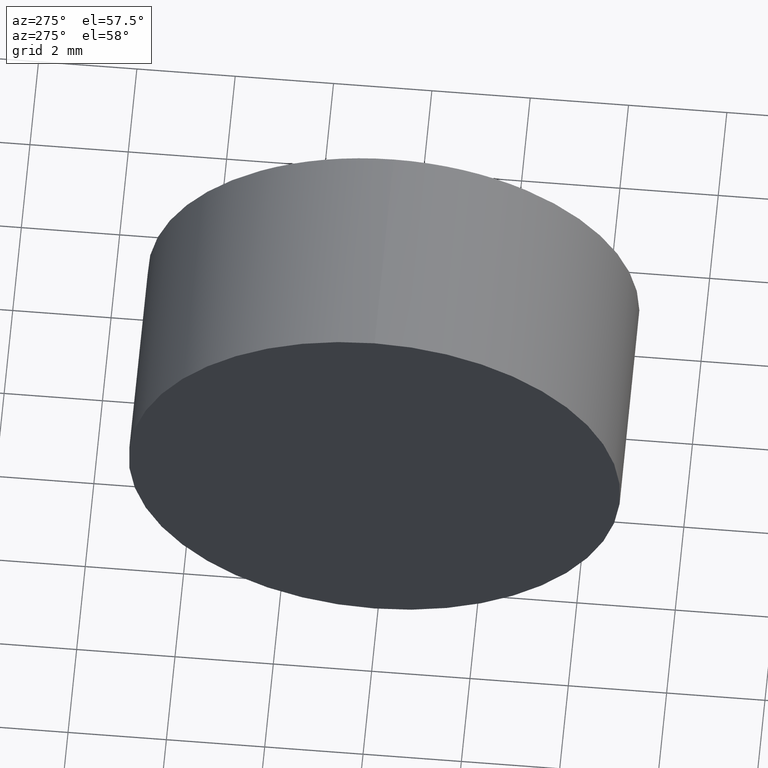
[diagram: clean part render]
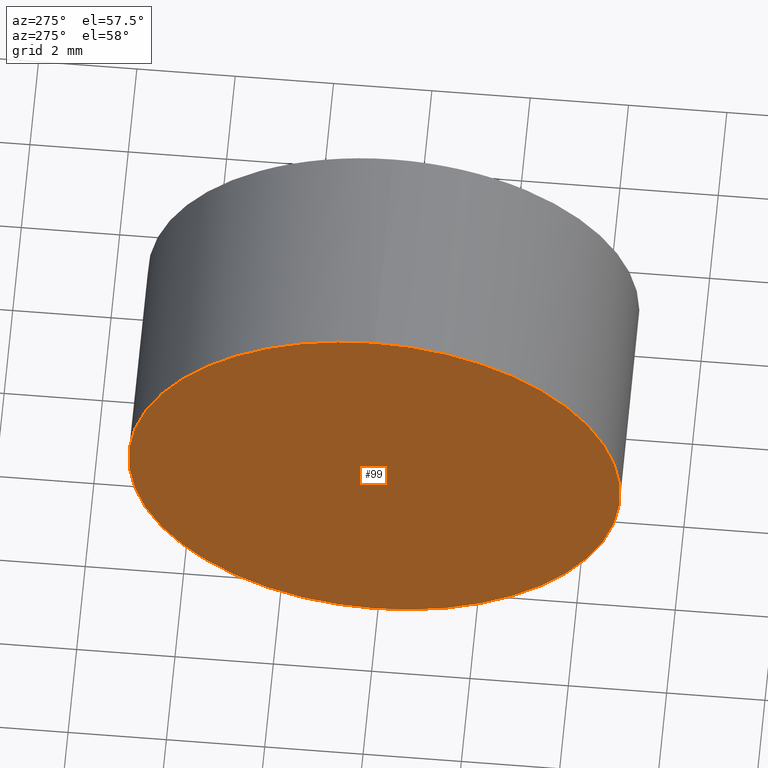
[diagram: same view with one face highlighted and labeled with its STEP entity id]
A machine part, auxiliary view. The second image highlights one B-rep face of the part: STEP entity #99.
In plain terms, the highlighted planar face has unit normal (1, 0, 0).
Its self-contained STEP definition (entity closure, byte-faithful):
#7 = CARTESIAN_POINT ( 'NONE',  ( 41.36582732549757700, 26.06225218280608000, 0.0000000000000000000 ) ) ;
#11 = AXIS2_PLACEMENT_3D ( 'NONE', #174, #186, #74 ) ;
#19 = EDGE_CURVE ( 'NONE', #70, #58, #157, .T. ) ;
#35 = DIRECTION ( 'NONE',  ( -1.000000000000000000, -0.0000000000000000000, -0.0000000000000000000 ) ) ;
#37 = DIRECTION ( 'NONE',  ( 0.0000000000000000000, 0.0000000000000000000, -1.000000000000000000 ) ) ;
#58 = VERTEX_POINT ( 'NONE', #75 ) ;
#70 = VERTEX_POINT ( 'NONE', #145 ) ;
#73 = AXIS2_PLACEMENT_3D ( 'NONE', #7, #35, #108 ) ;
#74 = DIRECTION ( 'NONE',  ( 0.0000000000000000000, 0.0000000000000000000, 1.000000000000000000 ) ) ;
#75 = CARTESIAN_POINT ( 'NONE',  ( 41.36582732549757700, 26.06225218280608000, -4.999999999999997300 ) ) ;
#89 = PLANE ( 'NONE',  #173 ) ;
#99 = ADVANCED_FACE ( 'NONE', ( #165 ), #89, .F. ) ;
#108 = DIRECTION ( 'NONE',  ( 0.0000000000000000000, 0.0000000000000000000, 1.000000000000000000 ) ) ;
#123 = DIRECTION ( 'NONE',  ( 1.000000000000000000, 0.0000000000000000000, 0.0000000000000000000 ) ) ;
#124 = CARTESIAN_POINT ( 'NONE',  ( 41.36582732549757700, 26.06225218280608000, 0.0000000000000000000 ) ) ;
#129 = CIRCLE ( 'NONE', #73, 4.999999999999997300 ) ;
#130 = ORIENTED_EDGE ( 'NONE', *, *, #19, .T. ) ;
#131 = EDGE_CURVE ( 'NONE', #58, #70, #129, .T. ) ;
#145 = CARTESIAN_POINT ( 'NONE',  ( 41.36582732549757700, 26.06225218280608000, 4.999999999999997300 ) ) ;
#157 = CIRCLE ( 'NONE', #11, 4.999999999999997300 ) ;
#165 = FACE_OUTER_BOUND ( 'NONE', #169, .T. ) ;
#169 = EDGE_LOOP ( 'NONE', ( #130, #172 ) ) ;
#172 = ORIENTED_EDGE ( 'NONE', *, *, #131, .T. ) ;
#173 = AXIS2_PLACEMENT_3D ( 'NONE', #124, #123, #37 ) ;
#174 = CARTESIAN_POINT ( 'NONE',  ( 41.36582732549757700, 26.06225218280608000, 0.0000000000000000000 ) ) ;
#186 = DIRECTION ( 'NONE',  ( -1.000000000000000000, -0.0000000000000000000, -0.0000000000000000000 ) ) ;